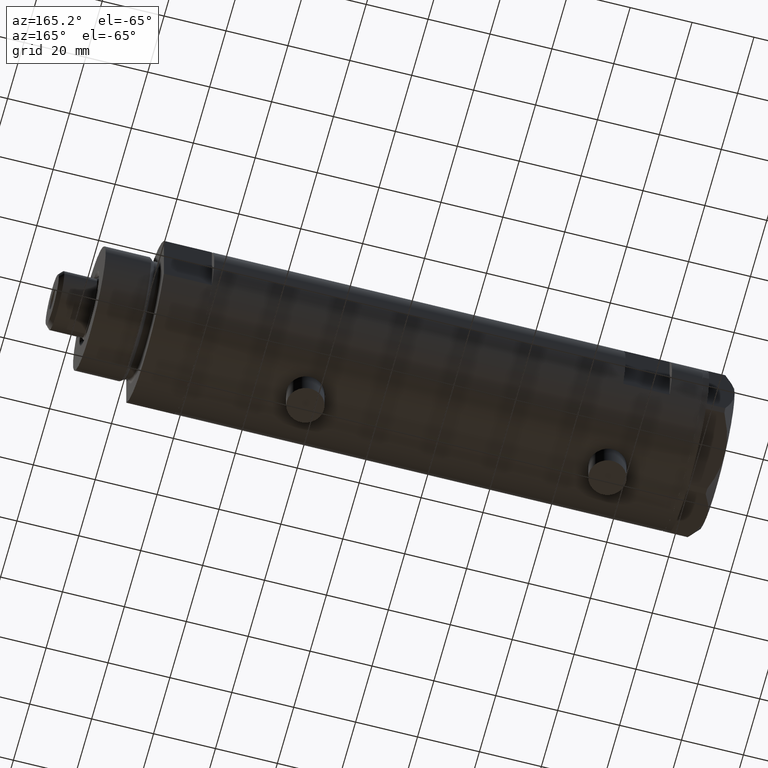
[diagram: clean part render]
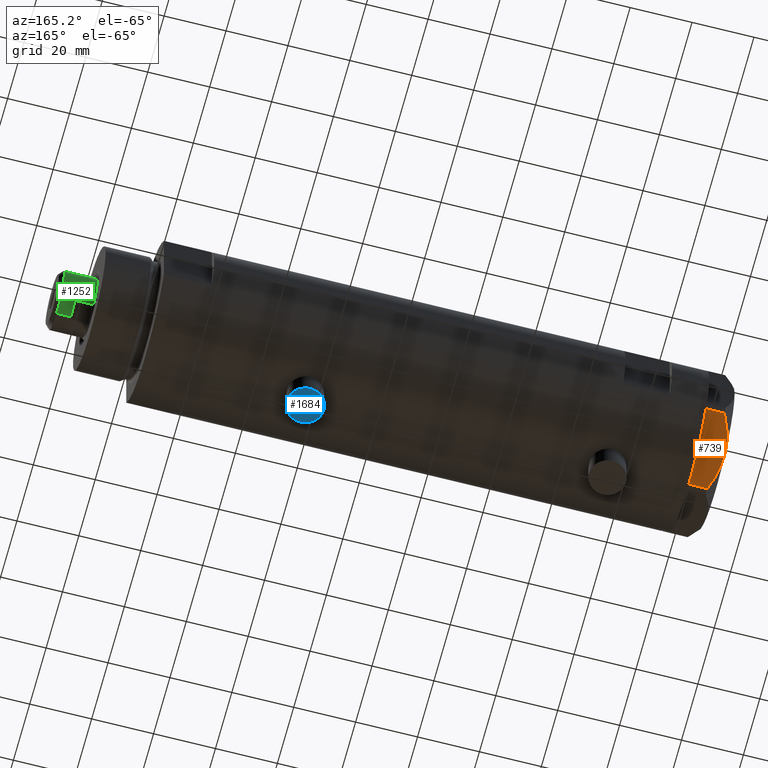
[diagram: same view with three faces highlighted in distinct colors, each labeled with its STEP entity id]
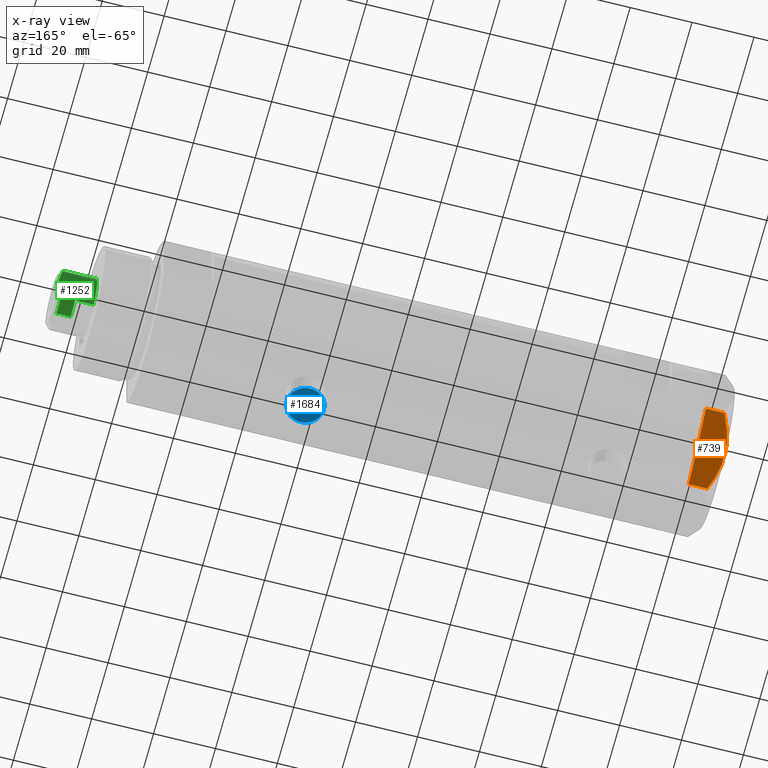
[diagram: x-ray of the same camera — body ghosted, the three highlighted faces saturated]
A machine part, auxiliary view with three faces highlighted in distinct colors.
The next image is the same camera in x-ray (body ghosted, the three faces saturated) — at least one of them is partly hidden behind the body in this view.
Their STEP definitions:

[orange] entity #739 — the highlighted planar face has unit normal (0, -0.5, 0.866).
#120 = LINE ( 'NONE', #1258, #3556 ) ;
#194 = CARTESIAN_POINT ( 'NONE',  ( 22.99999999999981171, 13.27905619136164184, 0.000000000000000000 ) ) ;
#203 = CARTESIAN_POINT ( 'NONE',  ( 5.229981517798067081, 23.53858114556529912, 7.892128867758392730 ) ) ;
#244 = CARTESIAN_POINT ( 'NONE',  ( 12.41906678023027588, 19.38796083407295967, 8.981686407609410949 ) ) ;
#279 = DIRECTION ( 'NONE',  ( 0.8660254037844415942, -0.4999999999999949485, 0.000000000000000000 ) ) ;
#299 = CARTESIAN_POINT ( 'NONE',  ( 7.884645426989626671, 22.00591022298560517, 8.707651728476925257 ) ) ;
#335 = VECTOR ( 'NONE', #917, 999.9999999999998863 ) ;
#523 = LINE ( 'NONE', #1651, #335 ) ;
#548 = CARTESIAN_POINT ( 'NONE',  ( 0.9999999999999297229, 25.98076211353316722, 0.000000000000000000 ) ) ;
#550 = CARTESIAN_POINT ( 'NONE',  ( 22.03005154776138852, 13.83905619136154819, 5.983800287807532037 ) ) ;
#632 = CARTESIAN_POINT ( 'NONE',  ( 16.05322244309623869, 17.28978008384030929, 8.426899937603700153 ) ) ;
#639 = VECTOR ( 'NONE', #3187, 1000.000000000000000 ) ;
#647 = CARTESIAN_POINT ( 'NONE',  ( 22.99999999999981171, 13.27905619136164184, 9.000000000000000000 ) ) ;
#649 = ORIENTED_EDGE ( 'NONE', *, *, #991, .T. ) ;
#739 = ADVANCED_FACE ( 'NONE', ( #4515 ), #1418, .F. ) ;
#775 = CARTESIAN_POINT ( 'NONE',  ( 21.99999999999987210, 13.85640646055121827, 0.000000000000000000 ) ) ;
#790 = ORIENTED_EDGE ( 'NONE', *, *, #3720, .F. ) ;
#898 = VERTEX_POINT ( 'NONE', #550 ) ;
#917 = DIRECTION ( 'NONE',  ( -0.8660254037844415942, 0.4999999999999949485, 0.000000000000000000 ) ) ;
#985 = CARTESIAN_POINT ( 'NONE',  ( 15.16323225988329959, 17.80361615569442790, 8.637313967156861949 ) ) ;
#991 = EDGE_CURVE ( 'NONE', #898, #4837, #4805, .T. ) ;
#1036 = CARTESIAN_POINT ( 'NONE',  ( 22.03005154776124286, 13.83905619136163168, 0.000000000000000000 ) ) ;
#1258 = CARTESIAN_POINT ( 'NONE',  ( 22.99999999999981171, 13.27905619136164184, 0.000000000000000000 ) ) ;
#1362 = CARTESIAN_POINT ( 'NONE',  ( 20.37350567916420019, 14.79546339452108050, 6.877782426143415506 ) ) ;
#1418 = PLANE ( 'NONE',  #1425 ) ;
#1425 = AXIS2_PLACEMENT_3D ( 'NONE', #647, #2268, #279 ) ;
#1651 = CARTESIAN_POINT ( 'NONE',  ( 22.99999999999981171, 13.27905619136164184, 0.000000000000000000 ) ) ;
#1768 = CARTESIAN_POINT ( 'NONE',  ( 11.95865151389051917, 19.65378171203322566, 9.000000000000005329 ) ) ;
#2123 = CARTESIAN_POINT ( 'NONE',  ( 0.9699484522385767304, 25.99811238272274849, 5.983800287807627960 ) ) ;
#2138 = ORIENTED_EDGE ( 'NONE', *, *, #4700, .T. ) ;
#2139 = CARTESIAN_POINT ( 'NONE',  ( 13.34348161667005073, 18.85424967941157703, 8.907842277728345692 ) ) ;
#2168 = CARTESIAN_POINT ( 'NONE',  ( 5.671686373602799591, 23.28356272816407824, 8.040681765829278405 ) ) ;
#2268 = DIRECTION ( 'NONE',  ( -0.4999999999999949485, -0.8660254037844415942, 0.000000000000000000 ) ) ;
#2359 = CARTESIAN_POINT ( 'NONE',  ( 0.9699484522385816154, 25.99811238272274494, 9.000000000000000000 ) ) ;
#2503 = CARTESIAN_POINT ( 'NONE',  ( 13.80210138309697498, 18.58946543380931260, 8.852712638955710034 ) ) ;
#2510 = CARTESIAN_POINT ( 'NONE',  ( 2.640413878806739945, 25.03366871902167290, 6.844201024438365089 ) ) ;
#2652 = VERTEX_POINT ( 'NONE', #548 ) ;
#2701 = EDGE_CURVE ( 'NONE', #4503, #4683, #4546, .T. ) ;
#2760 = DIRECTION ( 'NONE',  ( -0.8660254037844415942, 0.4999999999999949485, 0.000000000000000000 ) ) ;
#2864 = CARTESIAN_POINT ( 'NONE',  ( 18.67981377008996446, 15.77331687414937278, 7.629374868826049649 ) ) ;
#2948 = CARTESIAN_POINT ( 'NONE',  ( 4.357207709416038632, 24.04247733877631532, 7.570552255229681116 ) ) ;
#2994 = DIRECTION ( 'NONE',  ( 0.000000000000000000, 0.000000000000000000, -1.000000000000000000 ) ) ;
#3081 = CARTESIAN_POINT ( 'NONE',  ( 0.9699484522385816154, 25.99811238272274494, 0.000000000000000000 ) ) ;
#3148 = B_SPLINE_CURVE_WITH_KNOTS ( 'NONE', 3,
 ( #4717, #1362, #2864, #632, #985, #2503, #2139, #244, #1768, #3256 ),
 .UNSPECIFIED., .F., .F.,
 ( 4, 2, 2, 2, 4 ),
 ( 0.001228959670438493522, 0.007497079744270714746, 0.01063113978118682655, 0.01219816979964488159, 0.01376519981810293489 ),
 .UNSPECIFIED. ) ;
#3178 = VECTOR ( 'NONE', #4684, 999.9999999999998863 ) ;
#3185 = ORIENTED_EDGE ( 'NONE', *, *, #3590, .T. ) ;
#3187 = DIRECTION ( 'NONE',  ( 0.000000000000000000, 0.000000000000000000, 1.000000000000000000 ) ) ;
#3212 = CARTESIAN_POINT ( 'NONE',  ( 3.925137811030050994, 24.29193301091819635, 7.397272853991373687 ) ) ;
#3225 = VERTEX_POINT ( 'NONE', #3081 ) ;
#3256 = CARTESIAN_POINT ( 'NONE',  ( 11.49999999999990408, 19.91858428704219364, 9.000000000000000000 ) ) ;
#3273 = LINE ( 'NONE', #194, #3178 ) ;
#3304 = VECTOR ( 'NONE', #2994, 1000.000000000000000 ) ;
#3314 = CARTESIAN_POINT ( 'NONE',  ( 11.49999999999990408, 19.91858428704219364, 9.000000000000000000 ) ) ;
#3507 = VERTEX_POINT ( 'NONE', #775 ) ;
#3529 = LINE ( 'NONE', #2359, #639 ) ;
#3556 = VECTOR ( 'NONE', #2760, 999.9999999999998863 ) ;
#3567 = EDGE_LOOP ( 'NONE', ( #790, #649, #3185, #2138, #4716, #3844, #4543 ) ) ;
#3590 = EDGE_CURVE ( 'NONE', #4837, #3507, #120, .T. ) ;
#3720 = EDGE_CURVE ( 'NONE', #898, #4503, #3148, .T. ) ;
#3844 = ORIENTED_EDGE ( 'NONE', *, *, #3957, .T. ) ;
#3957 = EDGE_CURVE ( 'NONE', #3225, #4683, #3529, .T. ) ;
#4160 = EDGE_CURVE ( 'NONE', #2652, #3225, #3273, .T. ) ;
#4173 = CARTESIAN_POINT ( 'NONE',  ( 22.03005154776124286, 13.83905619136163168, 9.000000000000000000 ) ) ;
#4367 = CARTESIAN_POINT ( 'NONE',  ( 1.799196345396824492, 25.51934588838292228, 6.431317509509382191 ) ) ;
#4503 = VERTEX_POINT ( 'NONE', #4612 ) ;
#4515 = FACE_OUTER_BOUND ( 'NONE', #3567, .T. ) ;
#4543 = ORIENTED_EDGE ( 'NONE', *, *, #2701, .F. ) ;
#4546 = B_SPLINE_CURVE_WITH_KNOTS ( 'NONE', 3,
 ( #3314, #4725, #299, #2168, #203, #2948, #3212, #2510, #4367, #2123 ),
 .UNSPECIFIED., .F., .F.,
 ( 4, 2, 2, 2, 4 ),
 ( 0.01376519981810293489, 0.01998941321701561136, 0.02154546656674377961, 0.02310151991647194786, 0.02621362661592828783 ),
 .UNSPECIFIED. ) ;
#4612 = CARTESIAN_POINT ( 'NONE',  ( 11.49999999999990408, 19.91858428704219364, 9.000000000000000000 ) ) ;
#4626 = CARTESIAN_POINT ( 'NONE',  ( 0.9699484522385767304, 25.99811238272274849, 5.983800287807627960 ) ) ;
#4683 = VERTEX_POINT ( 'NONE', #4626 ) ;
#4684 = DIRECTION ( 'NONE',  ( -0.8660254037844415942, 0.4999999999999949485, 0.000000000000000000 ) ) ;
#4700 = EDGE_CURVE ( 'NONE', #3507, #2652, #523, .T. ) ;
#4716 = ORIENTED_EDGE ( 'NONE', *, *, #4160, .T. ) ;
#4717 = CARTESIAN_POINT ( 'NONE',  ( 22.03005154776138852, 13.83905619136154819, 5.983800287807532037 ) ) ;
#4725 = CARTESIAN_POINT ( 'NONE',  ( 9.678244919010086988, 20.97037507344920826, 9.000000000000001776 ) ) ;
#4805 = LINE ( 'NONE', #4173, #3304 ) ;
#4837 = VERTEX_POINT ( 'NONE', #1036 ) ;

[blue] entity #1684 — the highlighted planar face has unit normal (-0, 0, -1).
#212 = DIRECTION ( 'NONE',  ( 0.000000000000000000, 0.000000000000000000, 1.000000000000000000 ) ) ;
#224 = EDGE_CURVE ( 'NONE', #1550, #3919, #2529, .T. ) ;
#438 = DIRECTION ( 'NONE',  ( 0.000000000000000000, 0.000000000000000000, 1.000000000000000000 ) ) ;
#816 = FACE_OUTER_BOUND ( 'NONE', #919, .T. ) ;
#919 = EDGE_LOOP ( 'NONE', ( #4232, #3851 ) ) ;
#1550 = VERTEX_POINT ( 'NONE', #2926 ) ;
#1684 = ADVANCED_FACE ( 'NONE', ( #816 ), #3832, .T. ) ;
#2069 = AXIS2_PLACEMENT_3D ( 'NONE', #4666, #2109, #212 ) ;
#2109 = DIRECTION ( 'NONE',  ( -1.000000000000000000, 0.000000000000000000, 0.000000000000000000 ) ) ;
#2488 = EDGE_CURVE ( 'NONE', #3919, #1550, #3551, .T. ) ;
#2529 = CIRCLE ( 'NONE', #2691, 6.000000000000005329 ) ;
#2691 = AXIS2_PLACEMENT_3D ( 'NONE', #3906, #2777, #4668 ) ;
#2702 = CARTESIAN_POINT ( 'NONE',  ( -33.39999999999999858, 7.347880794884118750E-16, -36.64999999999999858 ) ) ;
#2777 = DIRECTION ( 'NONE',  ( -1.000000000000000000, 0.000000000000000000, 0.000000000000000000 ) ) ;
#2844 = AXIS2_PLACEMENT_3D ( 'NONE', #3788, #3738, #438 ) ;
#2926 = CARTESIAN_POINT ( 'NONE',  ( -33.39999999999999858, 0.000000000000000000, -48.65000000000001279 ) ) ;
#3551 = CIRCLE ( 'NONE', #2844, 6.000000000000005329 ) ;
#3738 = DIRECTION ( 'NONE',  ( -1.000000000000000000, 0.000000000000000000, 0.000000000000000000 ) ) ;
#3788 = CARTESIAN_POINT ( 'NONE',  ( -33.39999999999999858, 0.000000000000000000, -42.65000000000000568 ) ) ;
#3832 = PLANE ( 'NONE',  #2069 ) ;
#3851 = ORIENTED_EDGE ( 'NONE', *, *, #2488, .T. ) ;
#3906 = CARTESIAN_POINT ( 'NONE',  ( -33.39999999999999858, 0.000000000000000000, -42.65000000000000568 ) ) ;
#3919 = VERTEX_POINT ( 'NONE', #2702 ) ;
#4232 = ORIENTED_EDGE ( 'NONE', *, *, #224, .T. ) ;
#4666 = CARTESIAN_POINT ( 'NONE',  ( -33.39999999999999858, 0.000000000000000000, -42.65000000000000568 ) ) ;
#4668 = DIRECTION ( 'NONE',  ( 0.000000000000000000, 0.000000000000000000, 1.000000000000000000 ) ) ;

[green] entity #1252 — the highlighted cylindrical surface (edge-blend (fillet) strip) has radius 9.5 mm, axis along (-1, -0, 0).
#35 = DIRECTION ( 'NONE',  ( -0.000000000000000000, -0.000000000000000000, -1.000000000000000000 ) ) ;
#37 = EDGE_CURVE ( 'NONE', #1329, #2520, #2713, .T. ) ;
#73 = CIRCLE ( 'NONE', #3223, 9.500000000000001776 ) ;
#93 = DIRECTION ( 'NONE',  ( 1.000000000000000000, 0.000000000000000000, 0.000000000000000000 ) ) ;
#235 = DIRECTION ( 'NONE',  ( 0.000000000000000000, 0.000000000000000000, 1.000000000000000000 ) ) ;
#249 = CIRCLE ( 'NONE', #4346, 9.500000000000000000 ) ;
#342 = ORIENTED_EDGE ( 'NONE', *, *, #4197, .T. ) ;
#381 = DIRECTION ( 'NONE',  ( -0.000000000000000000, -0.000000000000000000, -1.000000000000000000 ) ) ;
#480 = AXIS2_PLACEMENT_3D ( 'NONE', #4155, #3445, #720 ) ;
#637 = CARTESIAN_POINT ( 'NONE',  ( 0.000000000000000000, 0.000000000000000000, 178.2000000000000171 ) ) ;
#700 = EDGE_CURVE ( 'NONE', #4641, #3647, #3311, .T. ) ;
#720 = DIRECTION ( 'NONE',  ( 1.000000000000000000, 0.000000000000000000, 0.000000000000000000 ) ) ;
#814 = ORIENTED_EDGE ( 'NONE', *, *, #2426, .T. ) ;
#947 = CIRCLE ( 'NONE', #1104, 9.500000000000000000 ) ;
#1086 = DIRECTION ( 'NONE',  ( 0.000000000000000000, 0.000000000000000000, -1.000000000000000000 ) ) ;
#1104 = AXIS2_PLACEMENT_3D ( 'NONE', #2671, #1556, #93 ) ;
#1190 = EDGE_LOOP ( 'NONE', ( #1796, #342, #1962, #3618, #814, #2278, #4123, #3478 ) ) ;
#1242 = VERTEX_POINT ( 'NONE', #3752 ) ;
#1252 = ADVANCED_FACE ( 'NONE', ( #4481 ), #2320, .T. ) ;
#1329 = VERTEX_POINT ( 'NONE', #1465 ) ;
#1337 = CARTESIAN_POINT ( 'NONE',  ( 7.982950582334830791, 5.149999999999999467, 173.6000000000000227 ) ) ;
#1338 = CARTESIAN_POINT ( 'NONE',  ( 9.500000000000000000, 1.163414459189985485E-15, 173.6000000000000227 ) ) ;
#1346 = EDGE_CURVE ( 'NONE', #1242, #2356, #73, .T. ) ;
#1440 = CARTESIAN_POINT ( 'NONE',  ( 7.982950582334830791, 5.149999999999999467, 173.6000000000000227 ) ) ;
#1449 = CARTESIAN_POINT ( 'NONE',  ( 9.500000000000001776, 1.163414459189985682E-15, 178.2000000000000171 ) ) ;
#1465 = CARTESIAN_POINT ( 'NONE',  ( -7.982950582334830791, 5.149999999999999467, 173.6000000000000227 ) ) ;
#1556 = DIRECTION ( 'NONE',  ( 0.000000000000000000, 0.000000000000000000, 1.000000000000000000 ) ) ;
#1698 = EDGE_CURVE ( 'NONE', #1242, #4789, #2482, .T. ) ;
#1759 = LINE ( 'NONE', #2880, #4649 ) ;
#1792 = CARTESIAN_POINT ( 'NONE',  ( -9.500000000000001776, 0.000000000000000000, 173.6000000000000227 ) ) ;
#1796 = ORIENTED_EDGE ( 'NONE', *, *, #1346, .T. ) ;
#1962 = ORIENTED_EDGE ( 'NONE', *, *, #4054, .T. ) ;
#2107 = EDGE_CURVE ( 'NONE', #1329, #4789, #947, .T. ) ;
#2278 = ORIENTED_EDGE ( 'NONE', *, *, #37, .F. ) ;
#2320 = CYLINDRICAL_SURFACE ( 'NONE', #3864, 9.500000000000001776 ) ;
#2356 = VERTEX_POINT ( 'NONE', #1449 ) ;
#2426 = EDGE_CURVE ( 'NONE', #3647, #2520, #2462, .T. ) ;
#2462 = CIRCLE ( 'NONE', #480, 9.500000000000023093 ) ;
#2482 = LINE ( 'NONE', #1792, #2833 ) ;
#2497 = CARTESIAN_POINT ( 'NONE',  ( 0.000000000000000000, 0.000000000000000000, 173.6000000000000227 ) ) ;
#2518 = DIRECTION ( 'NONE',  ( 1.000000000000000000, 0.000000000000000000, 0.000000000000000000 ) ) ;
#2520 = VERTEX_POINT ( 'NONE', #4833 ) ;
#2632 = DIRECTION ( 'NONE',  ( -0.000000000000000000, -0.000000000000000000, -1.000000000000000000 ) ) ;
#2671 = CARTESIAN_POINT ( 'NONE',  ( 0.000000000000000000, 0.000000000000000000, 173.6000000000000227 ) ) ;
#2713 = LINE ( 'NONE', #3022, #4255 ) ;
#2833 = VECTOR ( 'NONE', #3973, 1000.000000000000000 ) ;
#2880 = CARTESIAN_POINT ( 'NONE',  ( 9.500000000000001776, 1.163414459189985682E-15, 173.6000000000000227 ) ) ;
#3022 = CARTESIAN_POINT ( 'NONE',  ( -7.982950582334830791, 5.149999999999999467, 173.6000000000000227 ) ) ;
#3044 = VERTEX_POINT ( 'NONE', #1338 ) ;
#3223 = AXIS2_PLACEMENT_3D ( 'NONE', #637, #1086, #4119 ) ;
#3311 = LINE ( 'NONE', #1440, #4331 ) ;
#3445 = DIRECTION ( 'NONE',  ( 0.000000000000000000, 0.000000000000000000, 1.000000000000000000 ) ) ;
#3478 = ORIENTED_EDGE ( 'NONE', *, *, #1698, .F. ) ;
#3618 = ORIENTED_EDGE ( 'NONE', *, *, #700, .T. ) ;
#3647 = VERTEX_POINT ( 'NONE', #4794 ) ;
#3752 = CARTESIAN_POINT ( 'NONE',  ( -9.500000000000001776, 0.000000000000000000, 178.2000000000000171 ) ) ;
#3838 = DIRECTION ( 'NONE',  ( -1.000000000000000000, 0.000000000000000000, 0.000000000000000000 ) ) ;
#3864 = AXIS2_PLACEMENT_3D ( 'NONE', #4511, #2632, #3838 ) ;
#3973 = DIRECTION ( 'NONE',  ( -0.000000000000000000, -0.000000000000000000, -1.000000000000000000 ) ) ;
#4054 = EDGE_CURVE ( 'NONE', #3044, #4641, #249, .T. ) ;
#4119 = DIRECTION ( 'NONE',  ( 1.000000000000000000, 0.000000000000000000, 0.000000000000000000 ) ) ;
#4123 = ORIENTED_EDGE ( 'NONE', *, *, #2107, .T. ) ;
#4155 = CARTESIAN_POINT ( 'NONE',  ( 0.000000000000000000, 0.000000000000000000, 167.6000000000000227 ) ) ;
#4197 = EDGE_CURVE ( 'NONE', #2356, #3044, #1759, .T. ) ;
#4255 = VECTOR ( 'NONE', #35, 1000.000000000000000 ) ;
#4331 = VECTOR ( 'NONE', #381, 1000.000000000000000 ) ;
#4346 = AXIS2_PLACEMENT_3D ( 'NONE', #2497, #235, #2518 ) ;
#4374 = DIRECTION ( 'NONE',  ( -0.000000000000000000, -0.000000000000000000, -1.000000000000000000 ) ) ;
#4432 = CARTESIAN_POINT ( 'NONE',  ( -9.500000000000000000, 0.000000000000000000, 173.6000000000000227 ) ) ;
#4481 = FACE_OUTER_BOUND ( 'NONE', #1190, .T. ) ;
#4511 = CARTESIAN_POINT ( 'NONE',  ( 0.000000000000000000, 0.000000000000000000, 173.6000000000000227 ) ) ;
#4641 = VERTEX_POINT ( 'NONE', #1337 ) ;
#4649 = VECTOR ( 'NONE', #4374, 1000.000000000000000 ) ;
#4789 = VERTEX_POINT ( 'NONE', #4432 ) ;
#4794 = CARTESIAN_POINT ( 'NONE',  ( 7.982950582334830791, 5.149999999999999467, 167.6000000000000227 ) ) ;
#4833 = CARTESIAN_POINT ( 'NONE',  ( -7.982950582334829015, 5.150000000000040323, 167.6000000000000227 ) ) ;